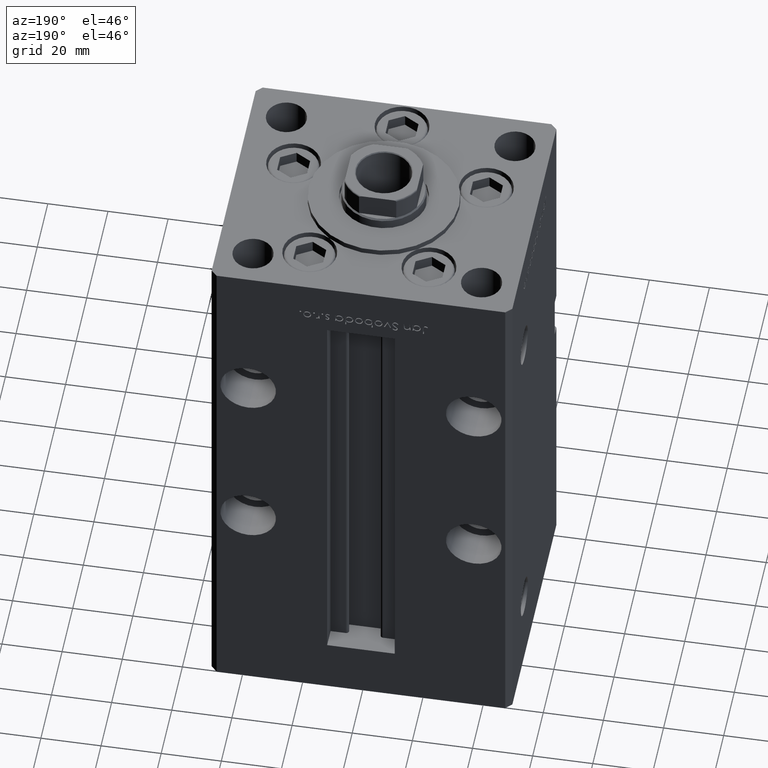
[diagram: clean part render]
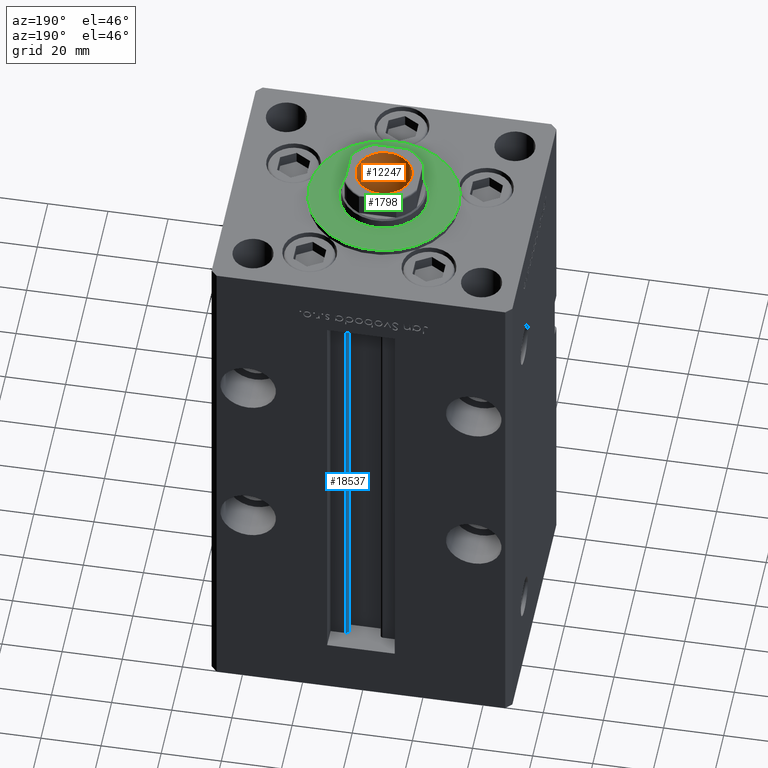
[diagram: same view with three faces highlighted in distinct colors, each labeled with its STEP entity id]
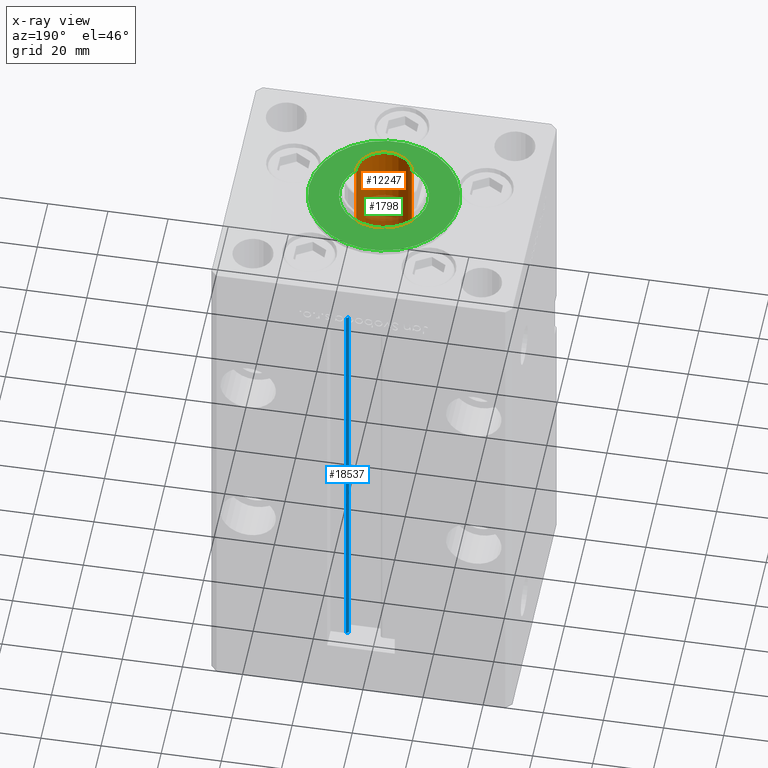
[diagram: x-ray of the same camera — body ghosted, the three highlighted faces saturated]
A machine part, auxiliary view with three faces highlighted in distinct colors.
The next image is the same camera in x-ray (body ghosted, the three faces saturated) — at least one of them is partly hidden behind the body in this view.
Their STEP definitions:

[orange] entity #12247 — the highlighted cylindrical surface (edge-blend (fillet) strip) has radius 9.25 mm, axis along (0, 0, 1).
#1102 = ORIENTED_EDGE ( 'NONE', *, *, #26076, .T. ) ;
#2177 = CYLINDRICAL_SURFACE ( 'NONE', #10784, 9.249999999999996447 ) ;
#4072 = AXIS2_PLACEMENT_3D ( 'NONE', #19051, #31441, #23639 ) ;
#8464 = DIRECTION ( 'NONE',  ( 1.000000000000000000, 0.000000000000000000, 0.000000000000000000 ) ) ;
#10167 = VERTEX_POINT ( 'NONE', #20222 ) ;
#10784 = AXIS2_PLACEMENT_3D ( 'NONE', #18576, #51433, #46353 ) ;
#10859 = VECTOR ( 'NONE', #26777, 1000.000000000000000 ) ;
#11452 = CARTESIAN_POINT ( 'NONE',  ( -9.249999999999994671, 1.132798289211300909E-15, 130.2500000000000000 ) ) ;
#11500 = LINE ( 'NONE', #38514, #52749 ) ;
#12247 = ADVANCED_FACE ( 'NONE', ( #39051 ), #2177, .F. ) ;
#14587 = EDGE_CURVE ( 'NONE', #10167, #25831, #30834, .T. ) ;
#17965 = ORIENTED_EDGE ( 'NONE', *, *, #20798, .F. ) ;
#18343 = ORIENTED_EDGE ( 'NONE', *, *, #35501, .T. ) ;
#18576 = CARTESIAN_POINT ( 'NONE',  ( 0.000000000000000000, 0.000000000000000000, 165.2500000000000000 ) ) ;
#19051 = CARTESIAN_POINT ( 'NONE',  ( 0.000000000000000000, 0.000000000000000000, 130.2500000000000000 ) ) ;
#20222 = CARTESIAN_POINT ( 'NONE',  ( 9.249999999999994671, 0.000000000000000000, 130.2500000000000000 ) ) ;
#20798 = EDGE_CURVE ( 'NONE', #50316, #10167, #25535, .T. ) ;
#23639 = DIRECTION ( 'NONE',  ( 1.000000000000000000, 0.000000000000000000, 0.000000000000000000 ) ) ;
#25535 = CIRCLE ( 'NONE', #4072, 9.249999999999994671 ) ;
#25831 = VERTEX_POINT ( 'NONE', #30279 ) ;
#25847 = ORIENTED_EDGE ( 'NONE', *, *, #14587, .F. ) ;
#26076 = EDGE_CURVE ( 'NONE', #47188, #25831, #34304, .T. ) ;
#26777 = DIRECTION ( 'NONE',  ( -0.000000000000000000, -0.000000000000000000, 1.000000000000000000 ) ) ;
#27917 = DIRECTION ( 'NONE',  ( -0.000000000000000000, -0.000000000000000000, 1.000000000000000000 ) ) ;
#29993 = AXIS2_PLACEMENT_3D ( 'NONE', #41043, #37269, #8464 ) ;
#30279 = CARTESIAN_POINT ( 'NONE',  ( 9.249999999999996447, 0.000000000000000000, 164.9499999999999886 ) ) ;
#30834 = LINE ( 'NONE', #47266, #10859 ) ;
#31441 = DIRECTION ( 'NONE',  ( -0.000000000000000000, -0.000000000000000000, 1.000000000000000000 ) ) ;
#34304 = CIRCLE ( 'NONE', #29993, 9.249999999999996447 ) ;
#35501 = EDGE_CURVE ( 'NONE', #50316, #47188, #11500, .T. ) ;
#37269 = DIRECTION ( 'NONE',  ( 0.000000000000000000, 0.000000000000000000, 1.000000000000000000 ) ) ;
#38514 = CARTESIAN_POINT ( 'NONE',  ( -9.249999999999996447, 1.132798289211301304E-15, 165.2500000000000000 ) ) ;
#39051 = FACE_OUTER_BOUND ( 'NONE', #41107, .T. ) ;
#41043 = CARTESIAN_POINT ( 'NONE',  ( 0.000000000000000000, 0.000000000000000000, 164.9499999999999886 ) ) ;
#41107 = EDGE_LOOP ( 'NONE', ( #17965, #18343, #1102, #25847 ) ) ;
#43113 = CARTESIAN_POINT ( 'NONE',  ( -9.249999999999996447, 1.132798289211301304E-15, 164.9499999999999886 ) ) ;
#46353 = DIRECTION ( 'NONE',  ( 1.000000000000000000, 0.000000000000000000, 0.000000000000000000 ) ) ;
#47188 = VERTEX_POINT ( 'NONE', #43113 ) ;
#47266 = CARTESIAN_POINT ( 'NONE',  ( 9.249999999999996447, 0.000000000000000000, 165.2500000000000000 ) ) ;
#50316 = VERTEX_POINT ( 'NONE', #11452 ) ;
#51433 = DIRECTION ( 'NONE',  ( -0.000000000000000000, -0.000000000000000000, 1.000000000000000000 ) ) ;
#52749 = VECTOR ( 'NONE', #27917, 1000.000000000000000 ) ;

[blue] entity #18537 — the highlighted cylindrical surface (edge-blend (fillet) strip) has radius 0.9333 mm, axis along (0, 0, 1).
#2151 = EDGE_CURVE ( 'NONE', #20559, #33852, #27777, .T. ) ;
#4363 = DIRECTION ( 'NONE',  ( -0.000000000000000000, -0.000000000000000000, 1.000000000000000000 ) ) ;
#7731 = DIRECTION ( 'NONE',  ( 0.000000000000000000, 0.000000000000000000, -1.000000000000000000 ) ) ;
#8332 = LINE ( 'NONE', #24488, #45108 ) ;
#14280 = CYLINDRICAL_SURFACE ( 'NONE', #45387, 0.9333333333339999260 ) ;
#14550 = FACE_OUTER_BOUND ( 'NONE', #16605, .T. ) ;
#14896 = EDGE_CURVE ( 'NONE', #20206, #22271, #30640, .T. ) ;
#16139 = ORIENTED_EDGE ( 'NONE', *, *, #2151, .T. ) ;
#16605 = EDGE_LOOP ( 'NONE', ( #44133, #37643, #42271, #16139 ) ) ;
#17777 = EDGE_CURVE ( 'NONE', #22271, #33852, #41246, .T. ) ;
#18537 = ADVANCED_FACE ( 'NONE', ( #14550 ), #14280, .T. ) ;
#20206 = VERTEX_POINT ( 'NONE', #41662 ) ;
#20559 = VERTEX_POINT ( 'NONE', #28541 ) ;
#20701 = DIRECTION ( 'NONE',  ( -0.000000000000000000, -0.000000000000000000, 1.000000000000000000 ) ) ;
#22271 = VERTEX_POINT ( 'NONE', #49502 ) ;
#22887 = CARTESIAN_POINT ( 'NONE',  ( 6.183333333333996151, 36.06666666666599497, 0.000000000000000000 ) ) ;
#23855 = VECTOR ( 'NONE', #4363, 1000.000000000000000 ) ;
#24411 = DIRECTION ( 'NONE',  ( 1.000000000000000000, 0.000000000000000000, 0.000000000000000000 ) ) ;
#24488 = CARTESIAN_POINT ( 'NONE',  ( 5.375042956467944499, 35.59999999999899245, 0.000000000000000000 ) ) ;
#26920 = DIRECTION ( 'NONE',  ( -0.000000000000000000, -0.000000000000000000, 1.000000000000000000 ) ) ;
#27777 = CIRCLE ( 'NONE', #32979, 0.9333333333339999260 ) ;
#28541 = CARTESIAN_POINT ( 'NONE',  ( 5.375042956467946276, 35.59999999999899245, 148.5000000000000000 ) ) ;
#30640 = CIRCLE ( 'NONE', #40967, 0.9333333333339999260 ) ;
#30970 = DIRECTION ( 'NONE',  ( 1.000000000000000000, 0.000000000000000000, 0.000000000000000000 ) ) ;
#32223 = CARTESIAN_POINT ( 'NONE',  ( 6.183333333333996151, 36.06666666666599497, 148.5000000000000000 ) ) ;
#32979 = AXIS2_PLACEMENT_3D ( 'NONE', #32223, #7731, #24411 ) ;
#33852 = VERTEX_POINT ( 'NONE', #52522 ) ;
#37643 = ORIENTED_EDGE ( 'NONE', *, *, #14896, .F. ) ;
#38855 = CARTESIAN_POINT ( 'NONE',  ( 6.183333333333996151, 36.06666666666599497, 0.000000000000000000 ) ) ;
#39420 = EDGE_CURVE ( 'NONE', #20206, #20559, #8332, .T. ) ;
#40967 = AXIS2_PLACEMENT_3D ( 'NONE', #38855, #43708, #51512 ) ;
#41246 = LINE ( 'NONE', #46078, #23855 ) ;
#41662 = CARTESIAN_POINT ( 'NONE',  ( 5.375042956467944499, 35.59999999999899245, 0.000000000000000000 ) ) ;
#42271 = ORIENTED_EDGE ( 'NONE', *, *, #39420, .T. ) ;
#43708 = DIRECTION ( 'NONE',  ( -0.000000000000000000, -0.000000000000000000, -1.000000000000000000 ) ) ;
#44133 = ORIENTED_EDGE ( 'NONE', *, *, #17777, .F. ) ;
#45108 = VECTOR ( 'NONE', #20701, 1000.000000000000000 ) ;
#45387 = AXIS2_PLACEMENT_3D ( 'NONE', #22887, #26920, #30970 ) ;
#46078 = CARTESIAN_POINT ( 'NONE',  ( 6.183333333333996151, 37.00000000000000000, 0.000000000000000000 ) ) ;
#49502 = CARTESIAN_POINT ( 'NONE',  ( 6.183333333333996151, 37.00000000000000000, 0.000000000000000000 ) ) ;
#51512 = DIRECTION ( 'NONE',  ( 1.000000000000000000, 0.000000000000000000, 0.000000000000000000 ) ) ;
#52522 = CARTESIAN_POINT ( 'NONE',  ( 6.183333333333996151, 37.00000000000000000, 148.5000000000000000 ) ) ;

[green] entity #1798 — the highlighted planar face has unit normal (0, 0, 1).
#1798 = ADVANCED_FACE ( 'NONE', ( #22588, #42809 ), #6181, .T. ) ;
#2202 = EDGE_CURVE ( 'NONE', #26753, #48376, #46728, .T. ) ;
#3222 = ORIENTED_EDGE ( 'NONE', *, *, #20927, .T. ) ;
#3733 = AXIS2_PLACEMENT_3D ( 'NONE', #48184, #39026, #18282 ) ;
#3965 = DIRECTION ( 'NONE',  ( 0.000000000000000000, 0.000000000000000000, 1.000000000000000000 ) ) ;
#6181 = PLANE ( 'NONE',  #3733 ) ;
#7698 = EDGE_CURVE ( 'NONE', #8440, #31331, #45932, .T. ) ;
#8440 = VERTEX_POINT ( 'NONE', #37104 ) ;
#10209 = CARTESIAN_POINT ( 'NONE',  ( -25.00000000000000000, -6.938893903907228378E-15, 2.000000000000000000 ) ) ;
#13668 = DIRECTION ( 'NONE',  ( 0.000000000000000000, 0.000000000000000000, 1.000000000000000000 ) ) ;
#14479 = EDGE_LOOP ( 'NONE', ( #3222, #24780 ) ) ;
#17979 = CARTESIAN_POINT ( 'NONE',  ( 25.00000000000000000, -3.877276906038844941E-15, 2.000000000000000000 ) ) ;
#18282 = DIRECTION ( 'NONE',  ( 1.000000000000000000, 0.000000000000000000, -0.000000000000000000 ) ) ;
#18642 = AXIS2_PLACEMENT_3D ( 'NONE', #38416, #34112, #30583 ) ;
#20927 = EDGE_CURVE ( 'NONE', #48376, #26753, #43596, .T. ) ;
#21282 = ORIENTED_EDGE ( 'NONE', *, *, #7698, .F. ) ;
#22588 = FACE_BOUND ( 'NONE', #41642, .T. ) ;
#23278 = EDGE_CURVE ( 'NONE', #31331, #8440, #41119, .T. ) ;
#23513 = AXIS2_PLACEMENT_3D ( 'NONE', #40846, #3965, #40043 ) ;
#24780 = ORIENTED_EDGE ( 'NONE', *, *, #2202, .T. ) ;
#24870 = CARTESIAN_POINT ( 'NONE',  ( 0.000000000000000000, -6.938893903907228378E-15, 2.000000000000000000 ) ) ;
#26753 = VERTEX_POINT ( 'NONE', #17979 ) ;
#29778 = CARTESIAN_POINT ( 'NONE',  ( -14.75000000000000178, -5.132539875164881787E-15, 2.000000000000000000 ) ) ;
#30583 = DIRECTION ( 'NONE',  ( 1.000000000000000000, 0.000000000000000000, 0.000000000000000000 ) ) ;
#31331 = VERTEX_POINT ( 'NONE', #29778 ) ;
#34008 = DIRECTION ( 'NONE',  ( 1.000000000000000000, 0.000000000000000000, 0.000000000000000000 ) ) ;
#34112 = DIRECTION ( 'NONE',  ( 0.000000000000000000, 0.000000000000000000, 1.000000000000000000 ) ) ;
#37104 = CARTESIAN_POINT ( 'NONE',  ( 14.75000000000000178, -6.938893903907228378E-15, 2.000000000000000000 ) ) ;
#37922 = DIRECTION ( 'NONE',  ( 1.000000000000000000, 0.000000000000000000, 0.000000000000000000 ) ) ;
#38416 = CARTESIAN_POINT ( 'NONE',  ( 0.000000000000000000, -6.938893903907228378E-15, 2.000000000000000000 ) ) ;
#38532 = AXIS2_PLACEMENT_3D ( 'NONE', #41957, #13668, #37922 ) ;
#39026 = DIRECTION ( 'NONE',  ( 0.000000000000000000, 0.000000000000000000, 1.000000000000000000 ) ) ;
#40043 = DIRECTION ( 'NONE',  ( 1.000000000000000000, 0.000000000000000000, 0.000000000000000000 ) ) ;
#40846 = CARTESIAN_POINT ( 'NONE',  ( 0.000000000000000000, -6.938893903907228378E-15, 2.000000000000000000 ) ) ;
#41119 = CIRCLE ( 'NONE', #38532, 14.75000000000000178 ) ;
#41642 = EDGE_LOOP ( 'NONE', ( #21282, #51060 ) ) ;
#41826 = DIRECTION ( 'NONE',  ( 0.000000000000000000, 0.000000000000000000, 1.000000000000000000 ) ) ;
#41957 = CARTESIAN_POINT ( 'NONE',  ( 0.000000000000000000, -6.938893903907228378E-15, 2.000000000000000000 ) ) ;
#42809 = FACE_OUTER_BOUND ( 'NONE', #14479, .T. ) ;
#43596 = CIRCLE ( 'NONE', #18642, 25.00000000000000000 ) ;
#45932 = CIRCLE ( 'NONE', #49397, 14.75000000000000178 ) ;
#46728 = CIRCLE ( 'NONE', #23513, 25.00000000000000000 ) ;
#48184 = CARTESIAN_POINT ( 'NONE',  ( 0.000000000000000000, -6.938893903907228378E-15, 2.000000000000000000 ) ) ;
#48376 = VERTEX_POINT ( 'NONE', #10209 ) ;
#49397 = AXIS2_PLACEMENT_3D ( 'NONE', #24870, #41826, #34008 ) ;
#51060 = ORIENTED_EDGE ( 'NONE', *, *, #23278, .F. ) ;